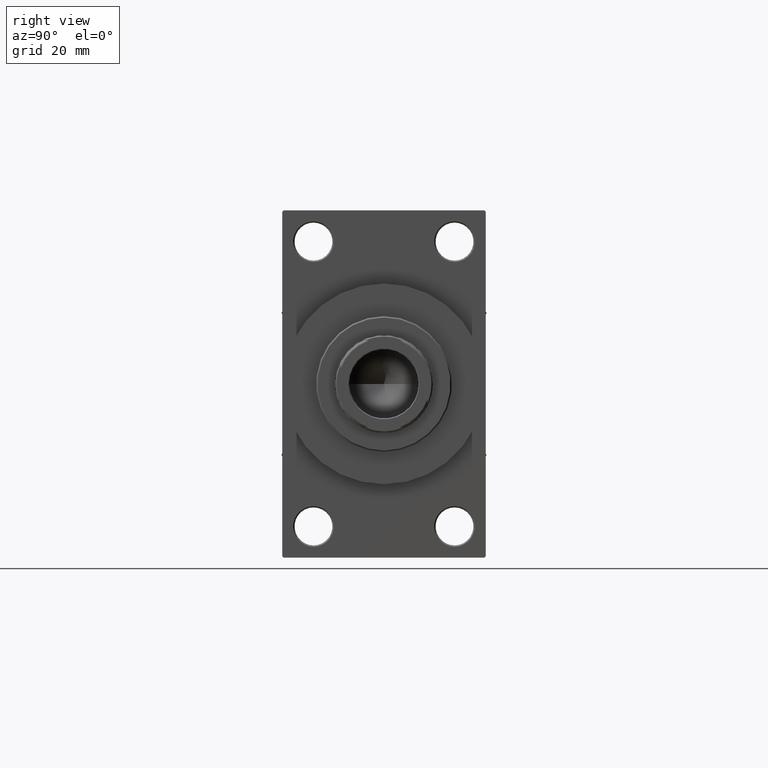
[diagram: clean part render]
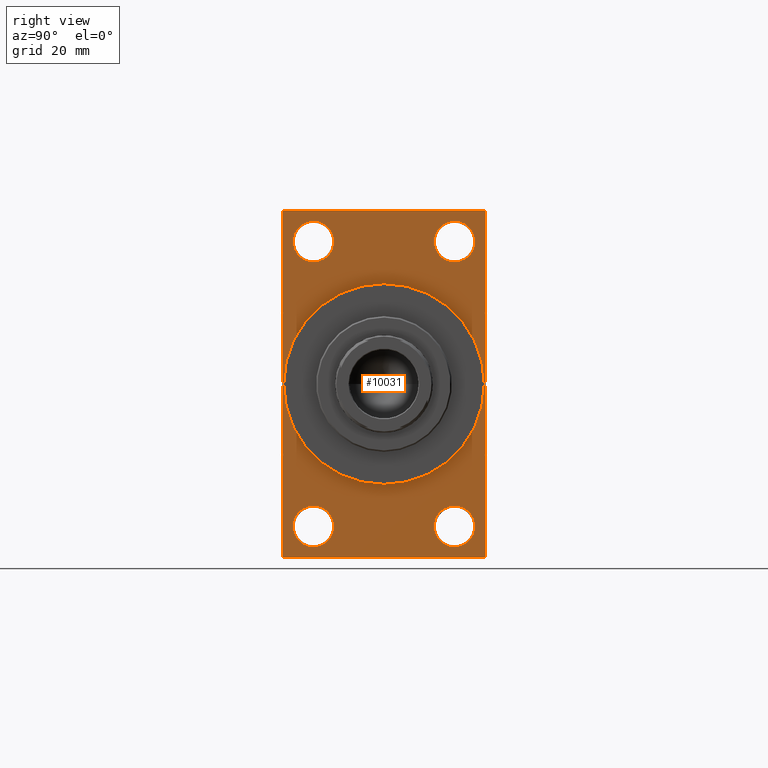
[diagram: same view with one face highlighted and labeled with its STEP entity id]
A machine part, right view. The second image highlights one B-rep face of the part: STEP entity #10031.
In plain terms, the highlighted planar face has unit normal (-1, 0, 0).
Its self-contained STEP definition (entity closure, byte-faithful):
#232 = VERTEX_POINT ( 'NONE', #5649 ) ;
#682 = CARTESIAN_POINT ( 'NONE',  ( 167.9999999999999716, 37.50000000000000000, 63.49999999999998579 ) ) ;
#845 = CARTESIAN_POINT ( 'NONE',  ( 167.9999999999999716, -37.49999999999999289, -63.50000000000002842 ) ) ;
#1574 = CARTESIAN_POINT ( 'NONE',  ( 167.9999999999999716, -36.99999999999999289, -64.00000000000001421 ) ) ;
#1765 = CARTESIAN_POINT ( 'NONE',  ( 167.9999999999999716, 37.00000000000000000, 63.99999999999998579 ) ) ;
#1918 = VERTEX_POINT ( 'NONE', #42266 ) ;
#2011 = CARTESIAN_POINT ( 'NONE',  ( 167.9999999999999716, 0.000000000000000000, 0.000000000000000000 ) ) ;
#2542 = AXIS2_PLACEMENT_3D ( 'NONE', #28178, #34862, #31280 ) ;
#3169 = EDGE_CURVE ( 'NONE', #14646, #232, #29906, .T. ) ;
#3180 = CARTESIAN_POINT ( 'NONE',  ( 167.9999999999999716, -37.49999999999999289, 63.99999999999997158 ) ) ;
#4074 = EDGE_CURVE ( 'NONE', #11478, #33622, #18989, .T. ) ;
#4412 = DIRECTION ( 'NONE',  ( -0.000000000000000000, -0.7071067811865524577, -0.7071067811865426878 ) ) ;
#4843 = ORIENTED_EDGE ( 'NONE', *, *, #14109, .F. ) ;
#4844 = VERTEX_POINT ( 'NONE', #845 ) ;
#4931 = DIRECTION ( 'NONE',  ( -1.000000000000000000, 0.000000000000000000, -0.000000000000000000 ) ) ;
#5586 = FACE_BOUND ( 'NONE', #7888, .T. ) ;
#5649 = CARTESIAN_POINT ( 'NONE',  ( 167.9999999999999716, -25.99999999999999645, -44.99999999999998579 ) ) ;
#5715 = ORIENTED_EDGE ( 'NONE', *, *, #4074, .T. ) ;
#5873 = LINE ( 'NONE', #1574, #17363 ) ;
#6412 = EDGE_CURVE ( 'NONE', #46539, #11478, #37579, .T. ) ;
#6633 = ORIENTED_EDGE ( 'NONE', *, *, #7436, .T. ) ;
#6793 = EDGE_LOOP ( 'NONE', ( #42602, #31767 ) ) ;
#6956 = ORIENTED_EDGE ( 'NONE', *, *, #31062, .T. ) ;
#7436 = EDGE_CURVE ( 'NONE', #20930, #46539, #8928, .T. ) ;
#7606 = LINE ( 'NONE', #8533, #36448 ) ;
#7671 = ORIENTED_EDGE ( 'NONE', *, *, #44195, .T. ) ;
#7817 = CIRCLE ( 'NONE', #25348, 7.500000000000007105 ) ;
#7864 = EDGE_CURVE ( 'NONE', #232, #14646, #7817, .T. ) ;
#7888 = EDGE_LOOP ( 'NONE', ( #7671, #18442 ) ) ;
#8153 = EDGE_CURVE ( 'NONE', #10961, #8773, #30413, .T. ) ;
#8533 = CARTESIAN_POINT ( 'NONE',  ( 167.9999999999999716, 37.49999999999999289, -63.50000000000001421 ) ) ;
#8619 = AXIS2_PLACEMENT_3D ( 'NONE', #2011, #34954, #20625 ) ;
#8773 = VERTEX_POINT ( 'NONE', #30711 ) ;
#8919 = CARTESIAN_POINT ( 'NONE',  ( 167.9999999999999716, 37.50000000000000000, 63.99999999999998579 ) ) ;
#8920 = DIRECTION ( 'NONE',  ( 0.000000000000000000, -1.000000000000000000, -1.850371707708594563E-16 ) ) ;
#8928 = LINE ( 'NONE', #1765, #45930 ) ;
#8990 = CARTESIAN_POINT ( 'NONE',  ( 167.9999999999999716, -25.99999999999999645, -52.49999999999999289 ) ) ;
#9222 = AXIS2_PLACEMENT_3D ( 'NONE', #26032, #26265, #11230 ) ;
#9889 = CARTESIAN_POINT ( 'NONE',  ( 167.9999999999999716, 0.000000000000000000, 0.000000000000000000 ) ) ;
#10031 = ADVANCED_FACE ( 'NONE', ( #23506, #38781, #30906, #5586, #20164, #23986 ), #34720, .F. ) ;
#10292 = CARTESIAN_POINT ( 'NONE',  ( 167.9999999999999716, 37.00000000000002132, -64.00000000000000000 ) ) ;
#10961 = VERTEX_POINT ( 'NONE', #10292 ) ;
#11230 = DIRECTION ( 'NONE',  ( 0.000000000000000000, 0.000000000000000000, -1.000000000000000000 ) ) ;
#11478 = VERTEX_POINT ( 'NONE', #28333 ) ;
#11538 = EDGE_LOOP ( 'NONE', ( #22234, #32125, #29483, #23241, #4843, #6633, #41129, #5715 ) ) ;
#11696 = EDGE_LOOP ( 'NONE', ( #19011, #13017 ) ) ;
#12432 = VERTEX_POINT ( 'NONE', #23045 ) ;
#12435 = CARTESIAN_POINT ( 'NONE',  ( 167.9999999999999716, -37.49999999999999289, 63.50000000000000000 ) ) ;
#13017 = ORIENTED_EDGE ( 'NONE', *, *, #7864, .T. ) ;
#13233 = DIRECTION ( 'NONE',  ( 1.000000000000000000, 0.000000000000000000, 0.000000000000000000 ) ) ;
#13400 = DIRECTION ( 'NONE',  ( -1.000000000000000000, 0.000000000000000000, -0.000000000000000000 ) ) ;
#13905 = ORIENTED_EDGE ( 'NONE', *, *, #14749, .F. ) ;
#14109 = EDGE_CURVE ( 'NONE', #20930, #1918, #26543, .T. ) ;
#14159 = DIRECTION ( 'NONE',  ( -1.000000000000000000, 0.000000000000000000, -0.000000000000000000 ) ) ;
#14449 = CIRCLE ( 'NONE', #22088, 7.500000000000007105 ) ;
#14646 = VERTEX_POINT ( 'NONE', #19218 ) ;
#14749 = EDGE_CURVE ( 'NONE', #29578, #46973, #24802, .T. ) ;
#15059 = CIRCLE ( 'NONE', #43295, 7.500000000000007105 ) ;
#15183 = DIRECTION ( 'NONE',  ( 0.000000000000000000, 0.000000000000000000, 1.000000000000000000 ) ) ;
#15240 = VERTEX_POINT ( 'NONE', #32977 ) ;
#15618 = EDGE_CURVE ( 'NONE', #46798, #12432, #44646, .T. ) ;
#16967 = VECTOR ( 'NONE', #8920, 1000.000000000000000 ) ;
#17062 = CARTESIAN_POINT ( 'NONE',  ( 167.9999999999999716, 26.00000000000000000, -44.99999999999998579 ) ) ;
#17363 = VECTOR ( 'NONE', #27132, 1000.000000000000000 ) ;
#17599 = DIRECTION ( 'NONE',  ( -1.000000000000000000, 0.000000000000000000, -0.000000000000000000 ) ) ;
#17686 = VECTOR ( 'NONE', #22033, 1000.000000000000000 ) ;
#17695 = DIRECTION ( 'NONE',  ( 0.000000000000000000, 0.000000000000000000, 1.000000000000000000 ) ) ;
#18442 = ORIENTED_EDGE ( 'NONE', *, *, #33409, .T. ) ;
#18460 = DIRECTION ( 'NONE',  ( 0.000000000000000000, -5.421010862427522170E-17, -1.000000000000000000 ) ) ;
#18989 = LINE ( 'NONE', #43837, #35273 ) ;
#19011 = ORIENTED_EDGE ( 'NONE', *, *, #3169, .T. ) ;
#19135 = CIRCLE ( 'NONE', #9222, 37.00000000000000000 ) ;
#19218 = CARTESIAN_POINT ( 'NONE',  ( 167.9999999999999716, -25.99999999999999645, -60.00000000000000000 ) ) ;
#19570 = CARTESIAN_POINT ( 'NONE',  ( 167.9999999999999716, 4.531193156845206793E-15, -37.00000000000000000 ) ) ;
#20164 = FACE_BOUND ( 'NONE', #40908, .T. ) ;
#20607 = AXIS2_PLACEMENT_3D ( 'NONE', #43290, #14159, #20844 ) ;
#20625 = DIRECTION ( 'NONE',  ( -0.000000000000000000, 0.000000000000000000, 1.000000000000000000 ) ) ;
#20844 = DIRECTION ( 'NONE',  ( 0.000000000000000000, 0.000000000000000000, 1.000000000000000000 ) ) ;
#20930 = VERTEX_POINT ( 'NONE', #682 ) ;
#21193 = ORIENTED_EDGE ( 'NONE', *, *, #15618, .T. ) ;
#22033 = DIRECTION ( 'NONE',  ( 0.000000000000000000, 0.000000000000000000, -1.000000000000000000 ) ) ;
#22088 = AXIS2_PLACEMENT_3D ( 'NONE', #36924, #25233, #15183 ) ;
#22234 = ORIENTED_EDGE ( 'NONE', *, *, #40512, .T. ) ;
#22351 = EDGE_CURVE ( 'NONE', #4844, #8773, #5873, .T. ) ;
#22981 = EDGE_CURVE ( 'NONE', #44202, #28474, #15059, .T. ) ;
#23028 = AXIS2_PLACEMENT_3D ( 'NONE', #8990, #4931, #26898 ) ;
#23045 = CARTESIAN_POINT ( 'NONE',  ( 167.9999999999999716, 26.00000000000000000, -60.00000000000000000 ) ) ;
#23128 = CIRCLE ( 'NONE', #2542, 7.500000000000007105 ) ;
#23241 = ORIENTED_EDGE ( 'NONE', *, *, #27252, .T. ) ;
#23491 = DIRECTION ( 'NONE',  ( 0.000000000000000000, -1.000000000000000000, -1.850371707708594563E-16 ) ) ;
#23506 = FACE_BOUND ( 'NONE', #6793, .T. ) ;
#23986 = FACE_OUTER_BOUND ( 'NONE', #11538, .T. ) ;
#24053 = VECTOR ( 'NONE', #18460, 1000.000000000000000 ) ;
#24381 = DIRECTION ( 'NONE',  ( -1.000000000000000000, 0.000000000000000000, -0.000000000000000000 ) ) ;
#24802 = CIRCLE ( 'NONE', #33921, 37.00000000000000000 ) ;
#25233 = DIRECTION ( 'NONE',  ( -1.000000000000000000, 0.000000000000000000, -0.000000000000000000 ) ) ;
#25348 = AXIS2_PLACEMENT_3D ( 'NONE', #32026, #13400, #32497 ) ;
#25426 = VECTOR ( 'NONE', #23491, 1000.000000000000000 ) ;
#26032 = CARTESIAN_POINT ( 'NONE',  ( 167.9999999999999716, 0.000000000000000000, 0.000000000000000000 ) ) ;
#26265 = DIRECTION ( 'NONE',  ( 1.000000000000000000, 0.000000000000000000, 0.000000000000000000 ) ) ;
#26543 = LINE ( 'NONE', #29897, #24053 ) ;
#26830 = CARTESIAN_POINT ( 'NONE',  ( 167.9999999999999716, 37.49999999999999289, -64.00000000000000000 ) ) ;
#26898 = DIRECTION ( 'NONE',  ( 0.000000000000000000, 0.000000000000000000, 1.000000000000000000 ) ) ;
#27132 = DIRECTION ( 'NONE',  ( 0.000000000000000000, 0.7071067811865573427, -0.7071067811865378028 ) ) ;
#27252 = EDGE_CURVE ( 'NONE', #10961, #1918, #7606, .T. ) ;
#27812 = DIRECTION ( 'NONE',  ( 0.000000000000000000, 0.000000000000000000, -1.000000000000000000 ) ) ;
#27872 = AXIS2_PLACEMENT_3D ( 'NONE', #39096, #35751, #45778 ) ;
#28178 = CARTESIAN_POINT ( 'NONE',  ( 167.9999999999999716, 26.00000000000000000, 52.49999999999999289 ) ) ;
#28333 = CARTESIAN_POINT ( 'NONE',  ( 167.9999999999999716, -37.00000000000001421, 63.99999999999997158 ) ) ;
#28474 = VERTEX_POINT ( 'NONE', #35943 ) ;
#28818 = DIRECTION ( 'NONE',  ( 0.000000000000000000, 0.000000000000000000, 1.000000000000000000 ) ) ;
#29194 = LINE ( 'NONE', #3180, #17686 ) ;
#29483 = ORIENTED_EDGE ( 'NONE', *, *, #8153, .F. ) ;
#29578 = VERTEX_POINT ( 'NONE', #31889 ) ;
#29897 = CARTESIAN_POINT ( 'NONE',  ( 167.9999999999999716, 37.50000000000000000, 63.99999999999998579 ) ) ;
#29906 = CIRCLE ( 'NONE', #23028, 7.500000000000007105 ) ;
#29929 = ORIENTED_EDGE ( 'NONE', *, *, #35272, .F. ) ;
#30413 = LINE ( 'NONE', #26830, #16967 ) ;
#30711 = CARTESIAN_POINT ( 'NONE',  ( 167.9999999999999716, -36.99999999999999289, -64.00000000000001421 ) ) ;
#30761 = VERTEX_POINT ( 'NONE', #32515 ) ;
#30906 = FACE_BOUND ( 'NONE', #35156, .T. ) ;
#31062 = EDGE_CURVE ( 'NONE', #12432, #46798, #14449, .T. ) ;
#31280 = DIRECTION ( 'NONE',  ( 0.000000000000000000, 0.000000000000000000, 1.000000000000000000 ) ) ;
#31767 = ORIENTED_EDGE ( 'NONE', *, *, #42177, .T. ) ;
#31889 = CARTESIAN_POINT ( 'NONE',  ( 167.9999999999999716, 0.000000000000000000, 37.00000000000000000 ) ) ;
#32026 = CARTESIAN_POINT ( 'NONE',  ( 167.9999999999999716, -25.99999999999999645, -52.49999999999999289 ) ) ;
#32125 = ORIENTED_EDGE ( 'NONE', *, *, #22351, .T. ) ;
#32497 = DIRECTION ( 'NONE',  ( 0.000000000000000000, 0.000000000000000000, 1.000000000000000000 ) ) ;
#32515 = CARTESIAN_POINT ( 'NONE',  ( 167.9999999999999716, 26.00000000000000000, 44.99999999999998579 ) ) ;
#32977 = CARTESIAN_POINT ( 'NONE',  ( 167.9999999999999716, 26.00000000000000000, 60.00000000000000000 ) ) ;
#33409 = EDGE_CURVE ( 'NONE', #15240, #30761, #35096, .T. ) ;
#33622 = VERTEX_POINT ( 'NONE', #12435 ) ;
#33921 = AXIS2_PLACEMENT_3D ( 'NONE', #9889, #13233, #27812 ) ;
#34720 = PLANE ( 'NONE',  #8619 ) ;
#34862 = DIRECTION ( 'NONE',  ( -1.000000000000000000, 0.000000000000000000, -0.000000000000000000 ) ) ;
#34954 = DIRECTION ( 'NONE',  ( -1.000000000000000000, 0.000000000000000000, -0.000000000000000000 ) ) ;
#35096 = CIRCLE ( 'NONE', #20607, 7.500000000000007105 ) ;
#35156 = EDGE_LOOP ( 'NONE', ( #6956, #21193 ) ) ;
#35272 = EDGE_CURVE ( 'NONE', #46973, #29578, #19135, .T. ) ;
#35273 = VECTOR ( 'NONE', #4412, 1000.000000000000000 ) ;
#35751 = DIRECTION ( 'NONE',  ( -1.000000000000000000, 0.000000000000000000, -0.000000000000000000 ) ) ;
#35943 = CARTESIAN_POINT ( 'NONE',  ( 167.9999999999999716, -25.99999999999999645, 60.00000000000000711 ) ) ;
#36448 = VECTOR ( 'NONE', #40787, 1000.000000000000114 ) ;
#36805 = CIRCLE ( 'NONE', #45167, 7.500000000000007105 ) ;
#36924 = CARTESIAN_POINT ( 'NONE',  ( 167.9999999999999716, 26.00000000000000000, -52.49999999999999289 ) ) ;
#37579 = LINE ( 'NONE', #8919, #25426 ) ;
#38781 = FACE_BOUND ( 'NONE', #11696, .T. ) ;
#38843 = CARTESIAN_POINT ( 'NONE',  ( 167.9999999999999716, 37.00000000000000000, 63.99999999999998579 ) ) ;
#39096 = CARTESIAN_POINT ( 'NONE',  ( 167.9999999999999716, 26.00000000000000000, -52.49999999999999289 ) ) ;
#40512 = EDGE_CURVE ( 'NONE', #33622, #4844, #29194, .T. ) ;
#40787 = DIRECTION ( 'NONE',  ( -0.000000000000000000, 0.7071067811865376918, 0.7071067811865573427 ) ) ;
#40908 = EDGE_LOOP ( 'NONE', ( #13905, #29929 ) ) ;
#41129 = ORIENTED_EDGE ( 'NONE', *, *, #6412, .T. ) ;
#41405 = DIRECTION ( 'NONE',  ( 0.000000000000000000, -0.7071067811865474617, 0.7071067811865474617 ) ) ;
#42177 = EDGE_CURVE ( 'NONE', #28474, #44202, #36805, .T. ) ;
#42266 = CARTESIAN_POINT ( 'NONE',  ( 167.9999999999999716, 37.49999999999999289, -63.50000000000001421 ) ) ;
#42602 = ORIENTED_EDGE ( 'NONE', *, *, #22981, .T. ) ;
#43290 = CARTESIAN_POINT ( 'NONE',  ( 167.9999999999999716, 26.00000000000000000, 52.49999999999999289 ) ) ;
#43295 = AXIS2_PLACEMENT_3D ( 'NONE', #46349, #24381, #17695 ) ;
#43837 = CARTESIAN_POINT ( 'NONE',  ( 167.9999999999999716, -37.49999999999999289, 63.50000000000000000 ) ) ;
#44195 = EDGE_CURVE ( 'NONE', #30761, #15240, #23128, .T. ) ;
#44202 = VERTEX_POINT ( 'NONE', #45845 ) ;
#44646 = CIRCLE ( 'NONE', #27872, 7.500000000000007105 ) ;
#45167 = AXIS2_PLACEMENT_3D ( 'NONE', #46963, #17599, #28818 ) ;
#45778 = DIRECTION ( 'NONE',  ( 0.000000000000000000, 0.000000000000000000, 1.000000000000000000 ) ) ;
#45845 = CARTESIAN_POINT ( 'NONE',  ( 167.9999999999999716, -25.99999999999999645, 44.99999999999999289 ) ) ;
#45930 = VECTOR ( 'NONE', #41405, 1000.000000000000114 ) ;
#46349 = CARTESIAN_POINT ( 'NONE',  ( 167.9999999999999716, -25.99999999999999645, 52.50000000000000000 ) ) ;
#46539 = VERTEX_POINT ( 'NONE', #38843 ) ;
#46798 = VERTEX_POINT ( 'NONE', #17062 ) ;
#46963 = CARTESIAN_POINT ( 'NONE',  ( 167.9999999999999716, -25.99999999999999645, 52.50000000000000000 ) ) ;
#46973 = VERTEX_POINT ( 'NONE', #19570 ) ;